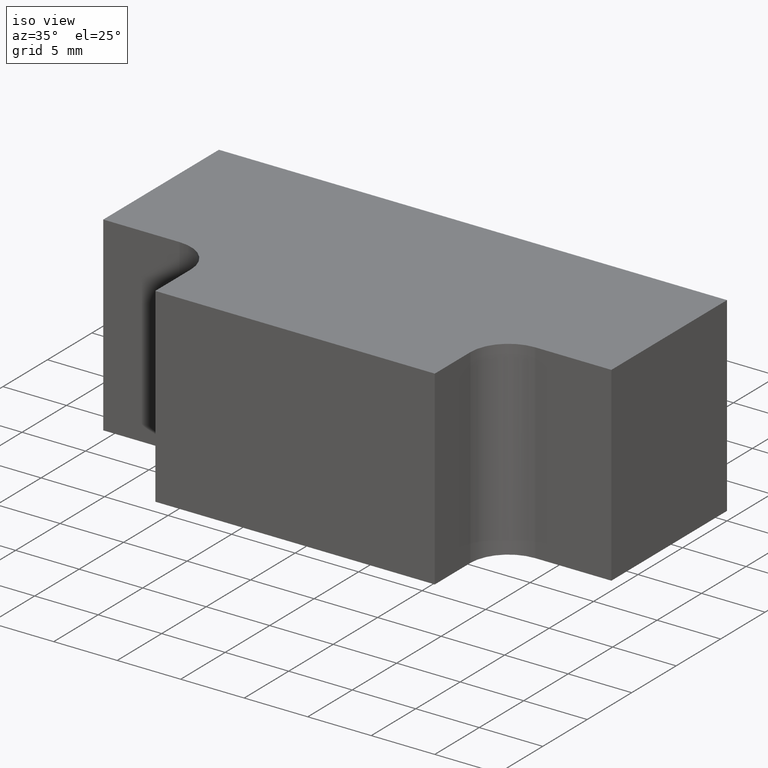
[diagram: clean part render]
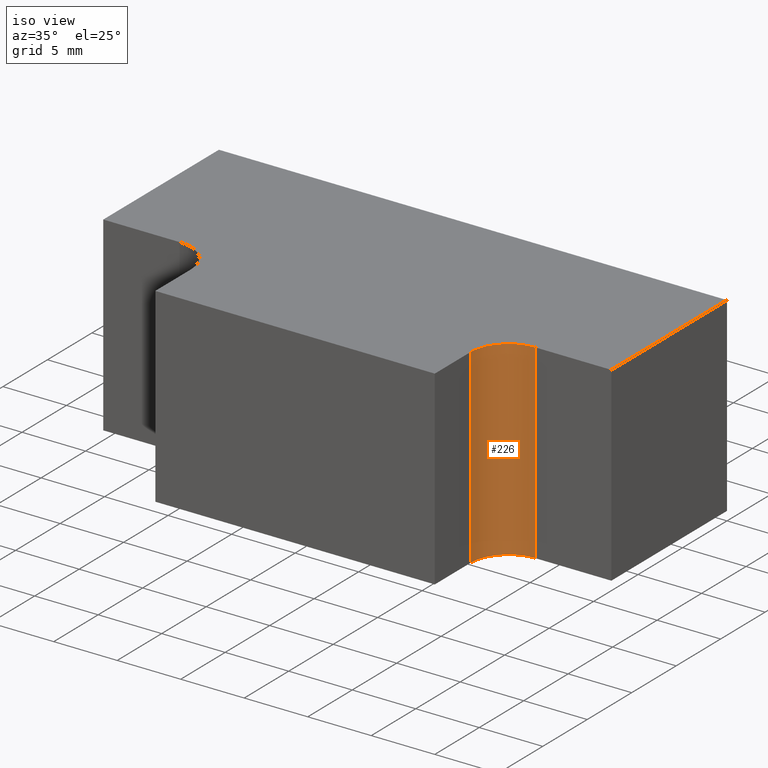
[diagram: same view with one face highlighted and labeled with its STEP entity id]
A machine part, iso view. The second image highlights one B-rep face of the part: STEP entity #226.
In plain terms, the highlighted cylindrical surface (partial cylindrical patch) has radius 3 mm, axis along (0, 0, 1).
Its self-contained STEP definition (entity closure, byte-faithful):
#16=CYLINDRICAL_SURFACE('',#264,3.);
#26=FACE_OUTER_BOUND('',#38,.T.);
#38=EDGE_LOOP('',(#189,#190,#191,#192));
#64=LINE('',#383,#90);
#65=LINE('',#387,#91);
#90=VECTOR('',#317,10.);
#91=VECTOR('',#322,10.);
#93=CIRCLE('',#253,3.);
#96=CIRCLE('',#265,3.);
#97=VERTEX_POINT('',#330);
#98=VERTEX_POINT('',#331);
#115=VERTEX_POINT('',#381);
#116=VERTEX_POINT('',#385);
#117=EDGE_CURVE('',#97,#98,#93,.T.);
#143=EDGE_CURVE('',#98,#115,#64,.T.);
#144=EDGE_CURVE('',#115,#116,#96,.T.);
#145=EDGE_CURVE('',#97,#116,#65,.T.);
#189=ORIENTED_EDGE('',*,*,#144,.T.);
#190=ORIENTED_EDGE('',*,*,#145,.F.);
#191=ORIENTED_EDGE('',*,*,#117,.T.);
#192=ORIENTED_EDGE('',*,*,#143,.T.);
#226=ADVANCED_FACE('',(#26),#16,.F.);
#253=AXIS2_PLACEMENT_3D('',#332,#272,#273);
#264=AXIS2_PLACEMENT_3D('',#384,#318,#319);
#265=AXIS2_PLACEMENT_3D('',#386,#320,#321);
#272=DIRECTION('center_axis',(0.,0.,-1.));
#273=DIRECTION('ref_axis',(0.,-1.,0.));
#317=DIRECTION('',(0.,0.,1.));
#318=DIRECTION('center_axis',(0.,0.,1.));
#319=DIRECTION('ref_axis',(0.,-1.,0.));
#320=DIRECTION('center_axis',(0.,0.,1.));
#321=DIRECTION('ref_axis',(0.,-1.,0.));
#322=DIRECTION('',(0.,0.,1.));
#330=CARTESIAN_POINT('',(11.,-16.,-7.5));
#331=CARTESIAN_POINT('',(14.,-13.,-7.5));
#332=CARTESIAN_POINT('Origin',(14.,-16.,-7.5));
#381=CARTESIAN_POINT('',(14.,-13.,7.5));
#383=CARTESIAN_POINT('',(14.,-13.,0.));
#384=CARTESIAN_POINT('Origin',(14.,-16.,0.));
#385=CARTESIAN_POINT('',(11.,-16.,7.5));
#386=CARTESIAN_POINT('Origin',(14.,-16.,7.5));
#387=CARTESIAN_POINT('',(11.,-16.,0.));